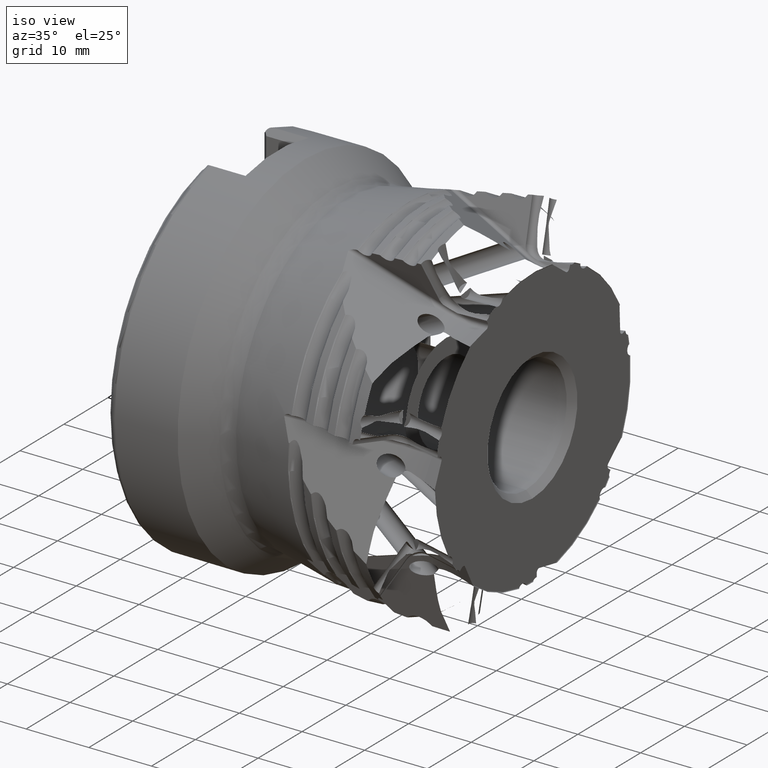
[diagram: clean part render]
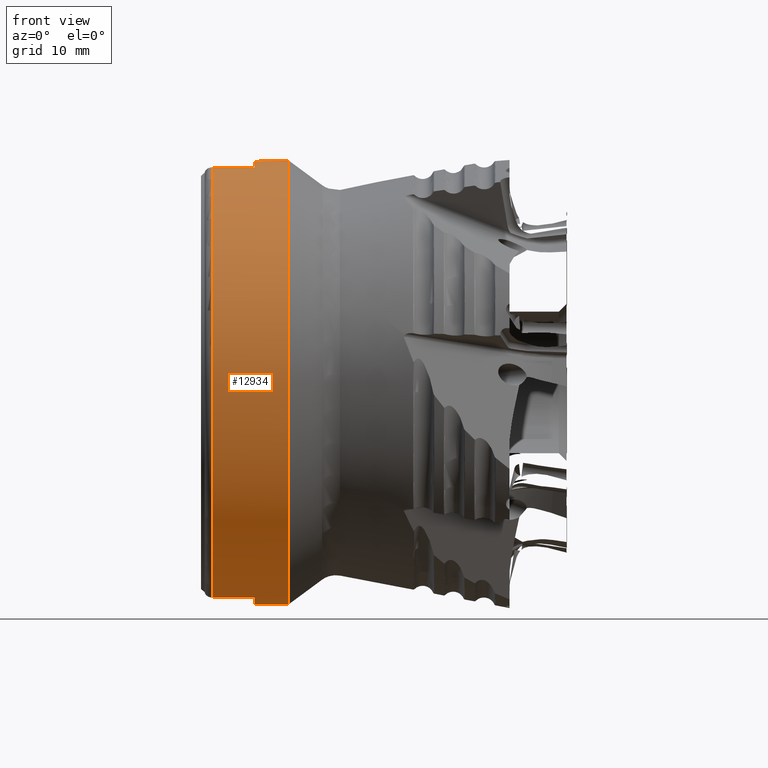
[diagram: tour spotlight — one face highlighted and labeled with its STEP entity id]
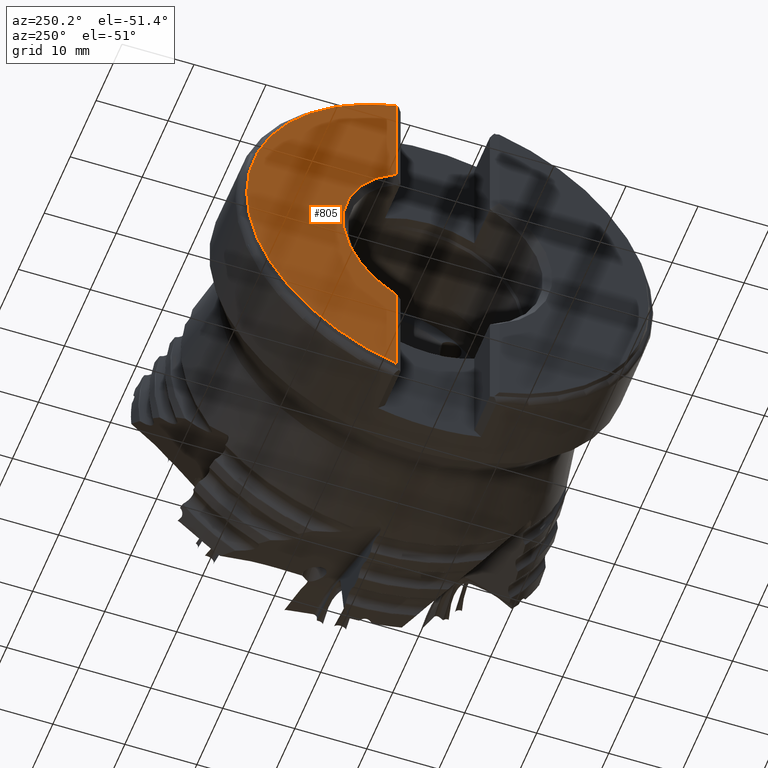
[diagram: tour spotlight — one face highlighted and labeled with its STEP entity id]
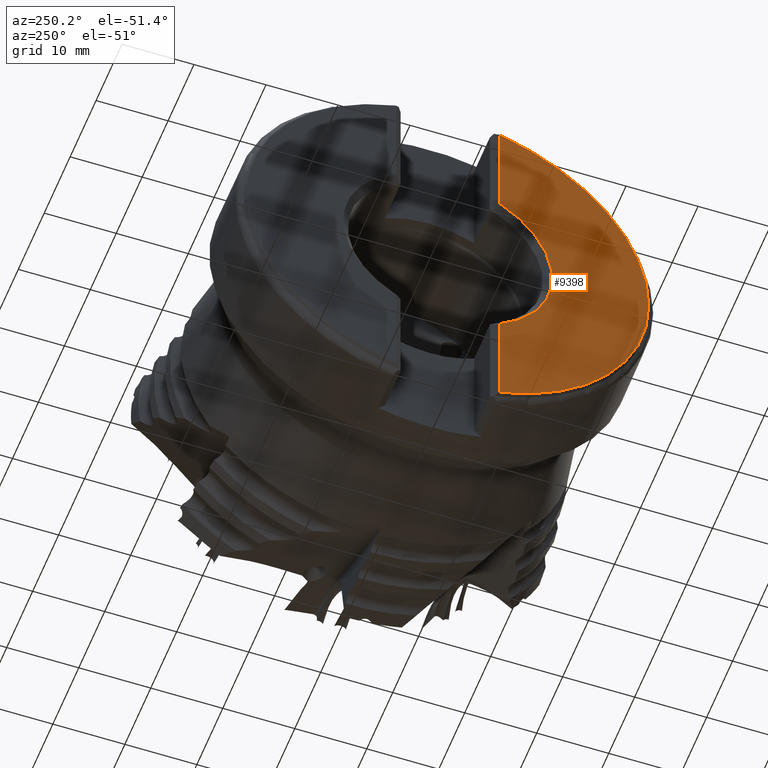
[diagram: tour spotlight — one face highlighted and labeled with its STEP entity id]
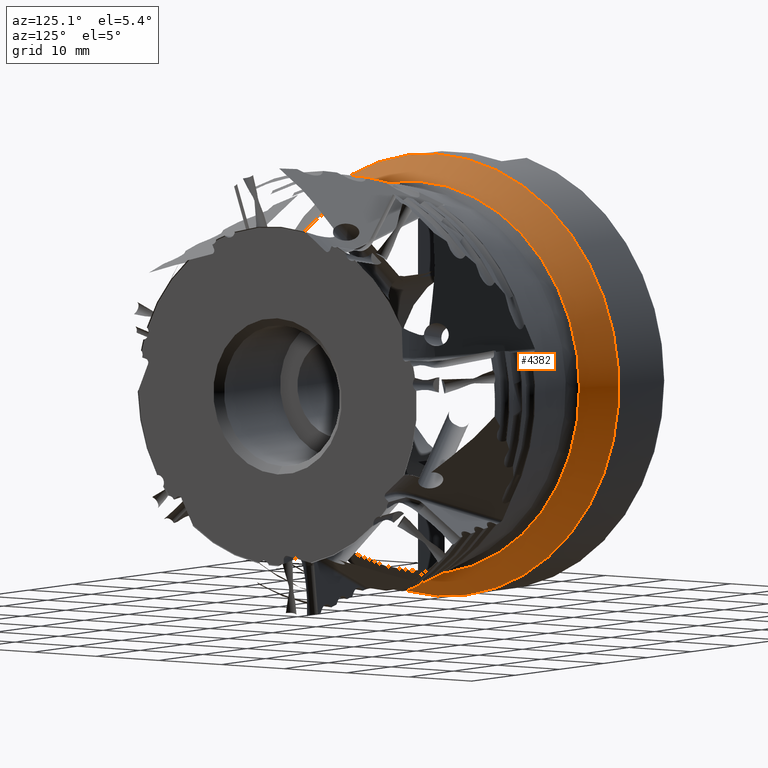
[diagram: tour spotlight — one face highlighted and labeled with its STEP entity id]
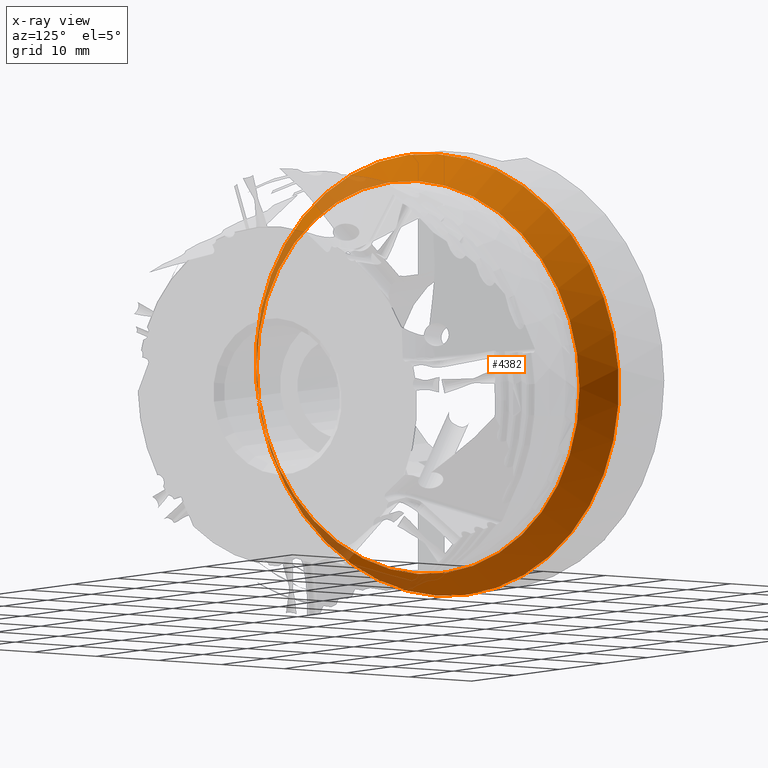
[diagram: x-ray of the same camera — body ghosted, this tour face saturated]
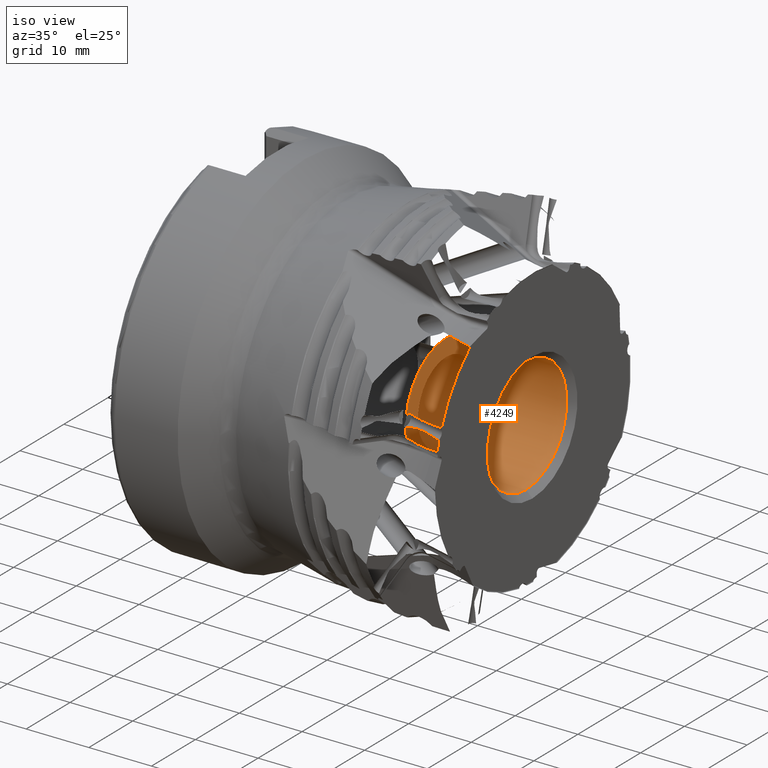
[diagram: tour spotlight — one face highlighted and labeled with its STEP entity id]
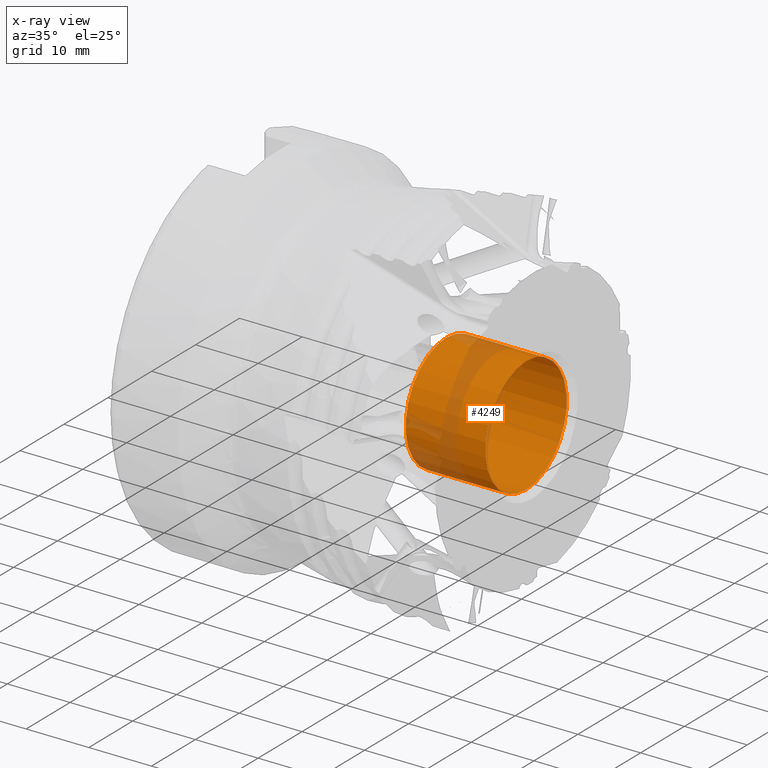
[diagram: x-ray of the same camera — body ghosted, this tour face saturated]
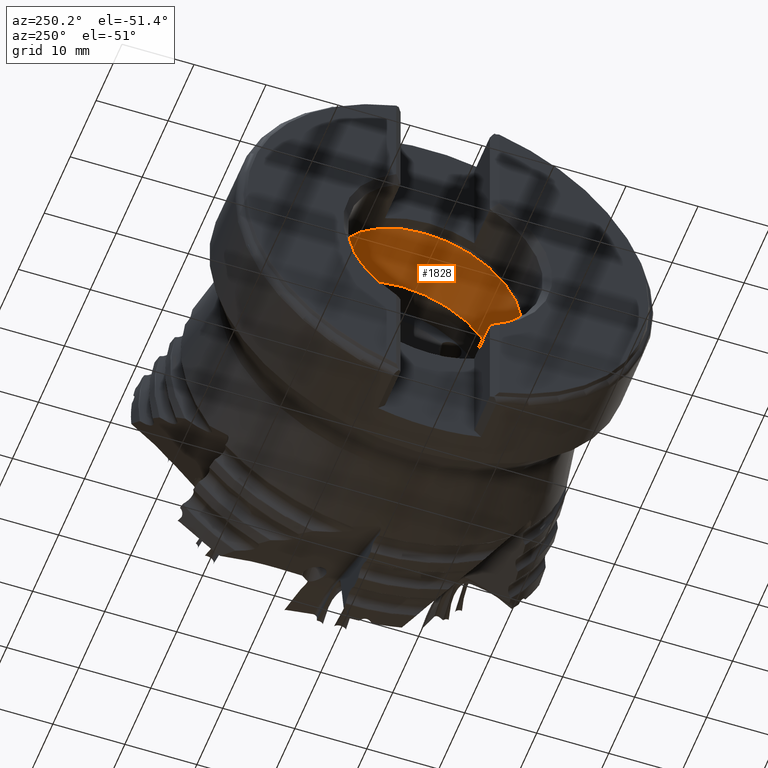
[diagram: tour spotlight — one face highlighted and labeled with its STEP entity id]
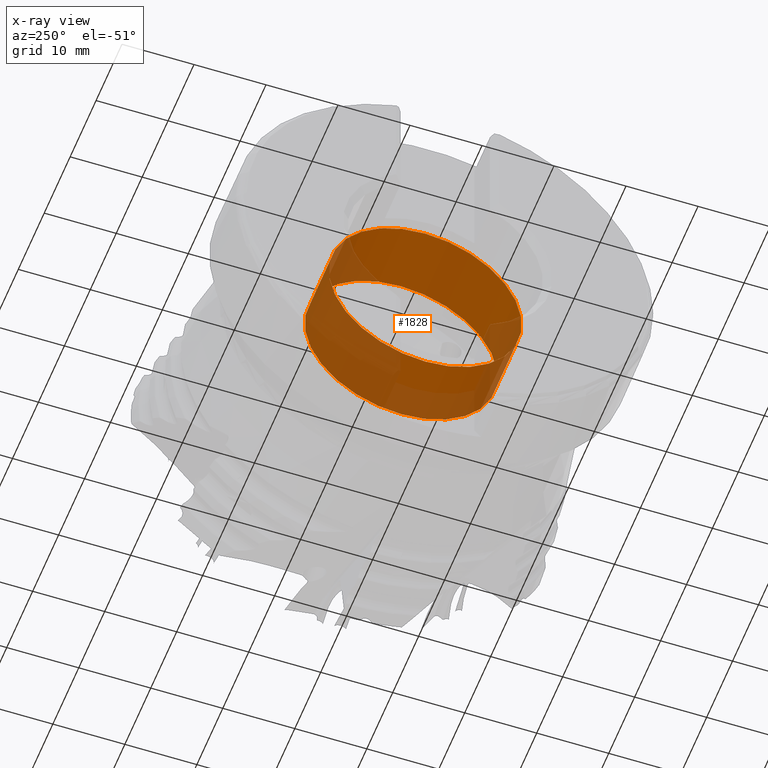
[diagram: x-ray of the same camera — body ghosted, this tour face saturated]
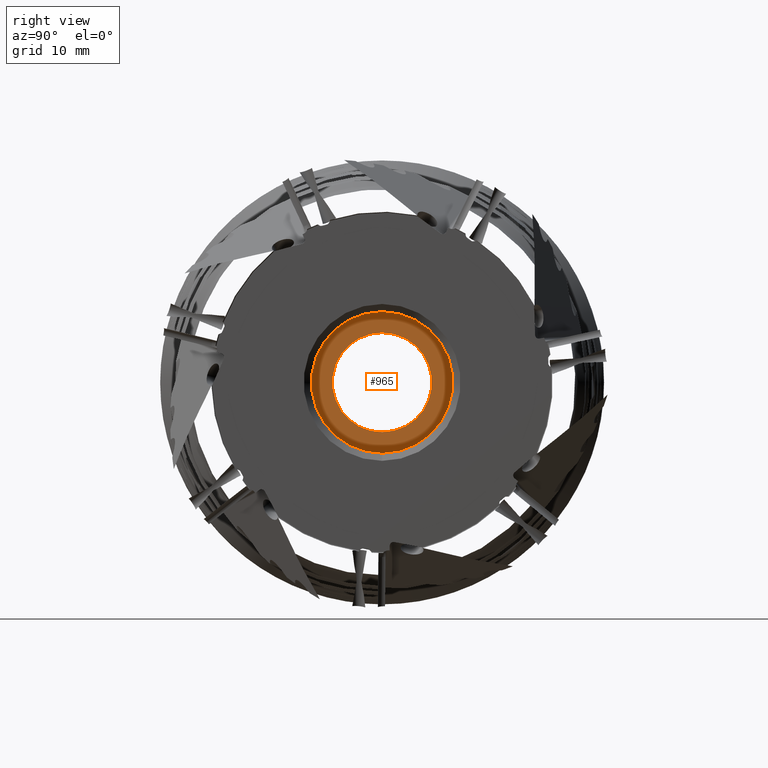
[diagram: tour spotlight — one face highlighted and labeled with its STEP entity id]
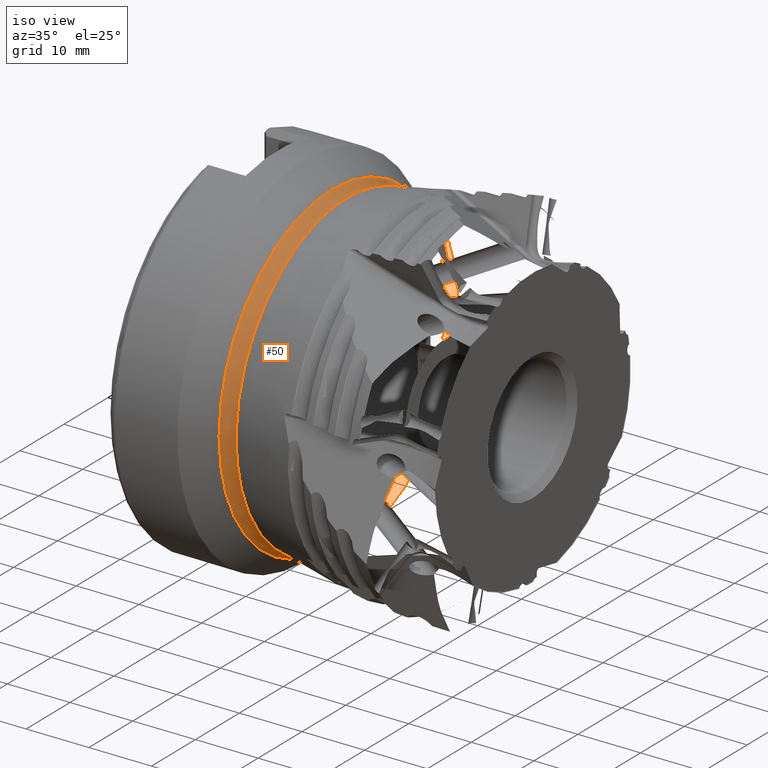
[diagram: tour spotlight — one face highlighted and labeled with its STEP entity id]
A machine part: a face-by-face anatomy tour. The part has 299 B-rep faces; the first image is the clean iso view, then the 8 largest visible faces are spotlighted one at a time (largest first), each with its STEP entity span.

Face 1 — front view, entity #12934. In plain terms, the highlighted cylindrical surface (bore or boss wall) has radius 29 mm, axis along (1, -0, -0).
Definition (entity closure, byte-faithful):
#37 = CARTESIAN_POINT ( 'NONE',  ( -47.54999999999999700, 0.0000000000000000000, 0.0000000000000000000 ) ) ;
#189 = DIRECTION ( 'NONE',  ( -1.000000000000000000, -0.0000000000000000000, -0.0000000000000000000 ) ) ;
#217 = CIRCLE ( 'NONE', #1855, 28.99999999999999600 ) ;
#283 = VECTOR ( 'NONE', #816, 1000.000000000000000 ) ;
#332 = DIRECTION ( 'NONE',  ( 1.000000000000000000, -0.0000000000000000000, -0.0000000000000000000 ) ) ;
#446 = EDGE_CURVE ( 'NONE', #3987, #10418, #8337, .T. ) ;
#537 = EDGE_LOOP ( 'NONE', ( #2968, #13372, #8790, #6016, #2985, #8470, #7058, #7799 ) ) ;
#816 = DIRECTION ( 'NONE',  ( -1.000000000000000000, 0.0000000000000000000, 0.0000000000000000000 ) ) ;
#1013 = CARTESIAN_POINT ( 'NONE',  ( -37.54999999999999700, 0.0000000000000000000, -28.99999999999999300 ) ) ;
#1113 = DIRECTION ( 'NONE',  ( 0.0000000000000000000, 0.0000000000000000000, -1.000000000000000000 ) ) ;
#1631 = EDGE_CURVE ( 'NONE', #10415, #5460, #5265, .T. ) ;
#1855 = AXIS2_PLACEMENT_3D ( 'NONE', #6556, #189, #7601 ) ;
#1898 = DIRECTION ( 'NONE',  ( -1.000000000000000000, 0.0000000000000000000, 0.0000000000000000000 ) ) ;
#2370 = DIRECTION ( 'NONE',  ( 1.000000000000000000, -0.0000000000000000000, -0.0000000000000000000 ) ) ;
#2613 = EDGE_CURVE ( 'NONE', #5551, #5551, #13028, .T. ) ;
#2836 = VERTEX_POINT ( 'NONE', #6629 ) ;
#2968 = ORIENTED_EDGE ( 'NONE', *, *, #8380, .T. ) ;
#2976 = DIRECTION ( 'NONE',  ( 1.000000000000000000, -0.0000000000000000000, -0.0000000000000000000 ) ) ;
#2985 = ORIENTED_EDGE ( 'NONE', *, *, #6899, .T. ) ;
#3062 = FACE_OUTER_BOUND ( 'NONE', #9675, .T. ) ;
#3724 = CARTESIAN_POINT ( 'NONE',  ( -41.99999999999999300, -7.162962588931226700, -28.10145844879891200 ) ) ;
#3987 = VERTEX_POINT ( 'NONE', #8842 ) ;
#4010 = VERTEX_POINT ( 'NONE', #9949 ) ;
#4032 = VERTEX_POINT ( 'NONE', #3724 ) ;
#4421 = CIRCLE ( 'NONE', #13558, 28.99999999999999600 ) ;
#4829 = EDGE_CURVE ( 'Kante61', #10415, #2836, #217, .T. ) ;
#4937 = CARTESIAN_POINT ( 'NONE',  ( -41.99999999999999300, -7.162962588931217000, 28.10145844879891200 ) ) ;
#5018 = ORIENTED_EDGE ( 'NONE', *, *, #2613, .F. ) ;
#5265 = LINE ( 'NONE', #13532, #283 ) ;
#5267 = CARTESIAN_POINT ( 'NONE',  ( -41.99999999999999300, 0.0000000000000000000, 0.0000000000000000000 ) ) ;
#5268 = CARTESIAN_POINT ( 'NONE',  ( -47.54999999999999700, 0.0000000000000000000, 0.0000000000000000000 ) ) ;
#5460 = VERTEX_POINT ( 'NONE', #5635 ) ;
#5551 = VERTEX_POINT ( 'NONE', #1013 ) ;
#5626 = CARTESIAN_POINT ( 'NONE',  ( 0.0000000000000000000, 0.0000000000000000000, 0.0000000000000000000 ) ) ;
#5635 = CARTESIAN_POINT ( 'NONE',  ( -47.54999999999999700, -7.162962588931217800, 28.10145844879891200 ) ) ;
#5966 = CARTESIAN_POINT ( 'NONE',  ( -37.54999999999999700, 0.0000000000000000000, 0.0000000000000000000 ) ) ;
#6016 = ORIENTED_EDGE ( 'NONE', *, *, #1631, .T. ) ;
#6329 = DIRECTION ( 'NONE',  ( 0.0000000000000000000, 0.0000000000000000000, -1.000000000000000000 ) ) ;
#6330 = DIRECTION ( 'NONE',  ( 0.0000000000000000000, 0.0000000000000000000, -1.000000000000000000 ) ) ;
#6556 = CARTESIAN_POINT ( 'NONE',  ( -41.99999999999999300, 0.0000000000000000000, 0.0000000000000000000 ) ) ;
#6629 = CARTESIAN_POINT ( 'NONE',  ( -41.99999999999999300, 7.162962588931238300, 28.10145844879890800 ) ) ;
#6680 = DIRECTION ( 'NONE',  ( 0.0000000000000000000, 0.0000000000000000000, -1.000000000000000000 ) ) ;
#6899 = EDGE_CURVE ( 'NONE', #5460, #4010, #9817, .T. ) ;
#7005 = DIRECTION ( 'NONE',  ( 0.0000000000000000000, 0.0000000000000000000, -1.000000000000000000 ) ) ;
#7058 = ORIENTED_EDGE ( 'NONE', *, *, #12662, .F. ) ;
#7199 = VECTOR ( 'NONE', #2976, 1000.000000000000000 ) ;
#7382 = CARTESIAN_POINT ( 'NONE',  ( 0.0000000000000000000, 7.162962588931239200, -28.10145844879891200 ) ) ;
#7455 = DIRECTION ( 'NONE',  ( 1.000000000000000000, -0.0000000000000000000, -0.0000000000000000000 ) ) ;
#7601 = DIRECTION ( 'NONE',  ( 0.0000000000000000000, 3.552713678800500900E-015, -1.000000000000000000 ) ) ;
#7653 = VECTOR ( 'NONE', #1898, 1000.000000000000000 ) ;
#7662 = CARTESIAN_POINT ( 'NONE',  ( -3.849776686507065000E-030, -7.162962588931214300, -28.10145844879891500 ) ) ;
#7799 = ORIENTED_EDGE ( 'NONE', *, *, #446, .T. ) ;
#7985 = EDGE_CURVE ( 'NONE', #4010, #4032, #9258, .T. ) ;
#8337 = LINE ( 'NONE', #7382, #7653 ) ;
#8380 = EDGE_CURVE ( 'NONE', #10418, #11529, #4421, .T. ) ;
#8470 = ORIENTED_EDGE ( 'NONE', *, *, #7985, .T. ) ;
#8790 = ORIENTED_EDGE ( 'NONE', *, *, #4829, .F. ) ;
#8842 = CARTESIAN_POINT ( 'NONE',  ( -41.99999999999999300, 7.162962588931238300, -28.10145844879890800 ) ) ;
#8982 = AXIS2_PLACEMENT_3D ( 'NONE', #5966, #13374, #7005 ) ;
#9258 = LINE ( 'NONE', #7662, #12046 ) ;
#9345 = CARTESIAN_POINT ( 'NONE',  ( 0.0000000000000000000, 7.162962588931239200, 28.10145844879891200 ) ) ;
#9432 = AXIS2_PLACEMENT_3D ( 'NONE', #5626, #332, #6680 ) ;
#9675 = EDGE_LOOP ( 'NONE', ( #5018 ) ) ;
#9717 = CIRCLE ( 'NONE', #10382, 28.99999999999999600 ) ;
#9817 = CIRCLE ( 'NONE', #12730, 28.99999999999999600 ) ;
#9949 = CARTESIAN_POINT ( 'NONE',  ( -47.54999999999999700, -7.162962588931226700, -28.10145844879890800 ) ) ;
#10040 = LINE ( 'NONE', #9345, #7199 ) ;
#10259 = CARTESIAN_POINT ( 'NONE',  ( -47.54999999999999700, 7.162962588931237400, -28.10145844879891200 ) ) ;
#10382 = AXIS2_PLACEMENT_3D ( 'NONE', #5267, #12655, #6329 ) ;
#10415 = VERTEX_POINT ( 'NONE', #4937 ) ;
#10418 = VERTEX_POINT ( 'NONE', #10259 ) ;
#10525 = CYLINDRICAL_SURFACE ( 'NONE', #9432, 28.99999999999999600 ) ;
#11529 = VERTEX_POINT ( 'NONE', #13206 ) ;
#12046 = VECTOR ( 'NONE', #2370, 1000.000000000000000 ) ;
#12502 = EDGE_CURVE ( 'NONE', #11529, #2836, #10040, .T. ) ;
#12655 = DIRECTION ( 'NONE',  ( -1.000000000000000000, -0.0000000000000000000, -0.0000000000000000000 ) ) ;
#12656 = DIRECTION ( 'NONE',  ( 1.000000000000000000, -0.0000000000000000000, -0.0000000000000000000 ) ) ;
#12662 = EDGE_CURVE ( 'Kante68', #3987, #4032, #9717, .T. ) ;
#12730 = AXIS2_PLACEMENT_3D ( 'NONE', #37, #7455, #1113 ) ;
#12934 = ADVANCED_FACE ( 'Fl�che8', ( #13675, #3062 ), #10525, .T. ) ;
#13028 = CIRCLE ( 'NONE', #8982, 28.99999999999999300 ) ;
#13206 = CARTESIAN_POINT ( 'NONE',  ( -47.54999999999999700, 7.162962588931237400, 28.10145844879890500 ) ) ;
#13372 = ORIENTED_EDGE ( 'NONE', *, *, #12502, .T. ) ;
#13374 = DIRECTION ( 'NONE',  ( 1.000000000000000000, -0.0000000000000000000, -0.0000000000000000000 ) ) ;
#13532 = CARTESIAN_POINT ( 'NONE',  ( -4.363080244708006400E-030, -7.162962588931206300, 28.10145844879891500 ) ) ;
#13558 = AXIS2_PLACEMENT_3D ( 'NONE', #5268, #12656, #6330 ) ;
#13675 = FACE_OUTER_BOUND ( 'NONE', #537, .T. ) ;

Face 2 — auxiliary view, entity #805. In plain terms, the highlighted planar face has unit normal (-1, 0, 0).
Definition (entity closure, byte-faithful):
#340 = AXIS2_PLACEMENT_3D ( 'NONE', #1317, #8765, #2381 ) ;
#618 = AXIS2_PLACEMENT_3D ( 'NONE', #2947, #10361, #4001 ) ;
#805 = ADVANCED_FACE ( 'NONE', ( #2839 ), #12962, .T. ) ;
#1317 = CARTESIAN_POINT ( 'NONE',  ( -48.99999999999999300, 0.0000000000000000000, 0.0000000000000000000 ) ) ;
#1570 = CIRCLE ( 'NONE', #1808, 14.52500000000000400 ) ;
#1808 = AXIS2_PLACEMENT_3D ( 'NONE', #6110, #13520, #7144 ) ;
#2225 = EDGE_CURVE ( 'NONE', #12869, #5691, #10378, .T. ) ;
#2381 = DIRECTION ( 'NONE',  ( 0.0000000000000000000, 0.0000000000000000000, 1.000000000000000000 ) ) ;
#2600 = ORIENTED_EDGE ( 'NONE', *, *, #9726, .T. ) ;
#2839 = FACE_OUTER_BOUND ( 'NONE', #10352, .T. ) ;
#2947 = CARTESIAN_POINT ( 'NONE',  ( -48.99999999999999300, 0.0000000000000000000, 0.0000000000000000000 ) ) ;
#2980 = EDGE_CURVE ( 'Kante54', #12869, #5721, #11031, .T. ) ;
#3440 = CARTESIAN_POINT ( 'NONE',  ( -48.99999999999999300, 7.150000000000013700, -26.99132532673132100 ) ) ;
#4001 = DIRECTION ( 'NONE',  ( 0.0000000000000000000, -8.881784197001252300E-016, 1.000000000000000000 ) ) ;
#4073 = VECTOR ( 'NONE', #5174, 1000.000000000000000 ) ;
#5174 = DIRECTION ( 'NONE',  ( 0.0000000000000000000, -0.0000000000000000000, 1.000000000000000000 ) ) ;
#5253 = VECTOR ( 'NONE', #11958, 1000.000000000000000 ) ;
#5632 = CARTESIAN_POINT ( 'NONE',  ( -48.99999999999999300, 7.150000000000014600, -35.00000000000000000 ) ) ;
#5691 = VERTEX_POINT ( 'NONE', #8273 ) ;
#5721 = VERTEX_POINT ( 'NONE', #11447 ) ;
#5826 = CARTESIAN_POINT ( 'NONE',  ( -48.99999999999999300, 7.150000000000013700, 12.64330356354698500 ) ) ;
#6110 = CARTESIAN_POINT ( 'NONE',  ( -48.99999999999999300, 0.0000000000000000000, 0.0000000000000000000 ) ) ;
#6200 = ORIENTED_EDGE ( 'NONE', *, *, #2980, .F. ) ;
#6888 = ORIENTED_EDGE ( 'NONE', *, *, #2225, .T. ) ;
#7144 = DIRECTION ( 'NONE',  ( 0.0000000000000000000, 0.0000000000000000000, 1.000000000000000000 ) ) ;
#8060 = LINE ( 'NONE', #5632, #5253 ) ;
#8134 = VERTEX_POINT ( 'NONE', #5826 ) ;
#8273 = CARTESIAN_POINT ( 'NONE',  ( -48.99999999999999300, 7.150000000000013700, -12.64330356354698500 ) ) ;
#8765 = DIRECTION ( 'NONE',  ( -1.000000000000000000, 0.0000000000000000000, 0.0000000000000000000 ) ) ;
#9412 = EDGE_CURVE ( 'NONE', #5691, #8134, #1570, .T. ) ;
#9726 = EDGE_CURVE ( 'NONE', #8134, #5721, #8060, .T. ) ;
#10352 = EDGE_LOOP ( 'NONE', ( #6888, #12966, #2600, #6200 ) ) ;
#10361 = DIRECTION ( 'NONE',  ( 1.000000000000000000, -0.0000000000000000000, -0.0000000000000000000 ) ) ;
#10378 = LINE ( 'NONE', #12576, #4073 ) ;
#11031 = CIRCLE ( 'NONE', #618, 27.92228756555321900 ) ;
#11447 = CARTESIAN_POINT ( 'NONE',  ( -48.99999999999999300, 7.150000000000014600, 26.99132532673015200 ) ) ;
#11958 = DIRECTION ( 'NONE',  ( 0.0000000000000000000, -0.0000000000000000000, 1.000000000000000000 ) ) ;
#12576 = CARTESIAN_POINT ( 'NONE',  ( -48.99999999999999300, 7.150000000000014600, -35.00000000000000000 ) ) ;
#12869 = VERTEX_POINT ( 'NONE', #3440 ) ;
#12962 = PLANE ( 'NONE',  #340 ) ;
#12966 = ORIENTED_EDGE ( 'NONE', *, *, #9412, .T. ) ;
#13520 = DIRECTION ( 'NONE',  ( 1.000000000000000000, -0.0000000000000000000, -0.0000000000000000000 ) ) ;

Face 3 — auxiliary view, entity #9398. In plain terms, the highlighted planar face has unit normal (-1, 0, 0).
Definition (entity closure, byte-faithful):
#307 = DIRECTION ( 'NONE',  ( 0.0000000000000000000, 0.0000000000000000000, 1.000000000000000000 ) ) ;
#1031 = EDGE_CURVE ( 'NONE', #12738, #2577, #9983, .T. ) ;
#1123 = AXIS2_PLACEMENT_3D ( 'NONE', #8099, #11280, #4940 ) ;
#1313 = CARTESIAN_POINT ( 'NONE',  ( -48.99999999999999300, -7.150000000000027000, -35.00000000000000000 ) ) ;
#1949 = CARTESIAN_POINT ( 'NONE',  ( -48.99999999999999300, -7.150000000000026100, -12.64330356354697700 ) ) ;
#2400 = LINE ( 'NONE', #1313, #10543 ) ;
#2577 = VERTEX_POINT ( 'NONE', #10121 ) ;
#2679 = CARTESIAN_POINT ( 'NONE',  ( -48.99999999999999300, -7.150000000000027000, -35.00000000000000000 ) ) ;
#3656 = EDGE_LOOP ( 'NONE', ( #7163, #12496, #8866, #5717 ) ) ;
#3863 = PLANE ( 'NONE',  #1123 ) ;
#4072 = FACE_OUTER_BOUND ( 'NONE', #3656, .T. ) ;
#4940 = DIRECTION ( 'NONE',  ( 0.0000000000000000000, 0.0000000000000000000, 1.000000000000000000 ) ) ;
#5356 = CARTESIAN_POINT ( 'NONE',  ( -48.99999999999999300, -7.150000000000025200, 26.99132532673132100 ) ) ;
#5596 = VECTOR ( 'NONE', #5909, 1000.000000000000000 ) ;
#5717 = ORIENTED_EDGE ( 'NONE', *, *, #12037, .T. ) ;
#5817 = CARTESIAN_POINT ( 'NONE',  ( -48.99999999999999300, 0.0000000000000000000, 0.0000000000000000000 ) ) ;
#5909 = DIRECTION ( 'NONE',  ( 0.0000000000000000000, 0.0000000000000000000, -1.000000000000000000 ) ) ;
#6657 = DIRECTION ( 'NONE',  ( 1.000000000000000000, -0.0000000000000000000, -0.0000000000000000000 ) ) ;
#6866 = DIRECTION ( 'NONE',  ( 0.0000000000000000000, 0.0000000000000000000, 1.000000000000000000 ) ) ;
#7163 = ORIENTED_EDGE ( 'NONE', *, *, #8684, .T. ) ;
#7356 = AXIS2_PLACEMENT_3D ( 'NONE', #13004, #6657, #307 ) ;
#8099 = CARTESIAN_POINT ( 'NONE',  ( -48.99999999999999300, 0.0000000000000000000, 0.0000000000000000000 ) ) ;
#8169 = AXIS2_PLACEMENT_3D ( 'NONE', #5817, #13222, #6866 ) ;
#8414 = LINE ( 'NONE', #2679, #5596 ) ;
#8684 = EDGE_CURVE ( 'NONE', #10523, #2577, #8414, .T. ) ;
#8866 = ORIENTED_EDGE ( 'NONE', *, *, #12030, .T. ) ;
#9398 = ADVANCED_FACE ( 'NONE', ( #4072 ), #3863, .T. ) ;
#9983 = CIRCLE ( 'NONE', #8169, 27.92228756555321900 ) ;
#10121 = CARTESIAN_POINT ( 'NONE',  ( -48.99999999999999300, -7.150000000000026100, -26.99132532673132100 ) ) ;
#10523 = VERTEX_POINT ( 'NONE', #1949 ) ;
#10543 = VECTOR ( 'NONE', #11844, 1000.000000000000000 ) ;
#11280 = DIRECTION ( 'NONE',  ( -1.000000000000000000, 0.0000000000000000000, 0.0000000000000000000 ) ) ;
#11768 = VERTEX_POINT ( 'NONE', #13573 ) ;
#11844 = DIRECTION ( 'NONE',  ( 0.0000000000000000000, 0.0000000000000000000, -1.000000000000000000 ) ) ;
#12030 = EDGE_CURVE ( 'NONE', #12738, #11768, #2400, .T. ) ;
#12037 = EDGE_CURVE ( 'NONE', #11768, #10523, #13365, .T. ) ;
#12496 = ORIENTED_EDGE ( 'NONE', *, *, #1031, .F. ) ;
#12738 = VERTEX_POINT ( 'NONE', #5356 ) ;
#13004 = CARTESIAN_POINT ( 'NONE',  ( -48.99999999999999300, 0.0000000000000000000, 0.0000000000000000000 ) ) ;
#13222 = DIRECTION ( 'NONE',  ( 1.000000000000000000, -0.0000000000000000000, -0.0000000000000000000 ) ) ;
#13365 = CIRCLE ( 'NONE', #7356, 14.52500000000000400 ) ;
#13573 = CARTESIAN_POINT ( 'NONE',  ( -48.99999999999999300, -7.150000000000027000, 12.64330356354697700 ) ) ;

Face 4 — auxiliary view, entity #4382. An x-ray twin of the same camera follows (body ghosted, this face saturated) — the face is partly hidden behind the body. In plain terms, the highlighted conical surface has half-angle 36.417 deg.
Definition (entity closure, byte-faithful):
#387 = CARTESIAN_POINT ( 'NONE',  ( -33.18403469254878500, 0.0000000000000000000, 0.0000000000000000000 ) ) ;
#1013 = CARTESIAN_POINT ( 'NONE',  ( -37.54999999999999700, 0.0000000000000000000, -28.99999999999999300 ) ) ;
#1122 = ORIENTED_EDGE ( 'NONE', *, *, #2613, .T. ) ;
#2071 = CARTESIAN_POINT ( 'NONE',  ( -33.18403469254878500, 0.0000000000000000000, -25.77912350802459700 ) ) ;
#2613 = EDGE_CURVE ( 'NONE', #5551, #5551, #13028, .T. ) ;
#2706 = VERTEX_POINT ( 'NONE', #2071 ) ;
#2920 = EDGE_CURVE ( 'NONE', #2706, #2706, #11691, .T. ) ;
#4382 = ADVANCED_FACE ( 'NONE', ( #13501, #5388 ), #10333, .T. ) ;
#4945 = DIRECTION ( 'NONE',  ( 1.000000000000000000, -0.0000000000000000000, -0.0000000000000000000 ) ) ;
#5198 = ORIENTED_EDGE ( 'NONE', *, *, #2920, .F. ) ;
#5388 = FACE_BOUND ( 'NONE', #11808, .T. ) ;
#5551 = VERTEX_POINT ( 'NONE', #1013 ) ;
#5679 = DIRECTION ( 'NONE',  ( -1.000000000000000000, 0.0000000000000000000, 0.0000000000000000000 ) ) ;
#5966 = CARTESIAN_POINT ( 'NONE',  ( -37.54999999999999700, 0.0000000000000000000, 0.0000000000000000000 ) ) ;
#7005 = DIRECTION ( 'NONE',  ( 0.0000000000000000000, 0.0000000000000000000, -1.000000000000000000 ) ) ;
#7793 = DIRECTION ( 'NONE',  ( 0.0000000000000000000, 0.0000000000000000000, 1.000000000000000000 ) ) ;
#8817 = AXIS2_PLACEMENT_3D ( 'NONE', #387, #5679, #7793 ) ;
#8982 = AXIS2_PLACEMENT_3D ( 'NONE', #5966, #13374, #7005 ) ;
#10333 = CONICAL_SURFACE ( 'NONE', #8817, 25.77912350802459700, 0.6355979305626715500 ) ;
#10806 = EDGE_LOOP ( 'NONE', ( #1122 ) ) ;
#11285 = CARTESIAN_POINT ( 'NONE',  ( -33.18403469254878500, 0.0000000000000000000, 0.0000000000000000000 ) ) ;
#11546 = AXIS2_PLACEMENT_3D ( 'NONE', #11285, #4945, #12352 ) ;
#11691 = CIRCLE ( 'NONE', #11546, 25.77912350802459700 ) ;
#11808 = EDGE_LOOP ( 'NONE', ( #5198 ) ) ;
#12352 = DIRECTION ( 'NONE',  ( 0.0000000000000000000, 0.0000000000000000000, -1.000000000000000000 ) ) ;
#13028 = CIRCLE ( 'NONE', #8982, 28.99999999999999300 ) ;
#13374 = DIRECTION ( 'NONE',  ( 1.000000000000000000, -0.0000000000000000000, -0.0000000000000000000 ) ) ;
#13501 = FACE_OUTER_BOUND ( 'NONE', #10806, .T. ) ;

Face 5 — iso view, entity #4249. An x-ray twin of the same camera follows (body ghosted, this face saturated) — the face is partly hidden behind the body. In plain terms, the highlighted cylindrical surface (bore or boss wall) has radius 9.25 mm, axis along (1, -0, -0).
Definition (entity closure, byte-faithful):
#160 = DIRECTION ( 'NONE',  ( 1.000000000000000000, -0.0000000000000000000, -0.0000000000000000000 ) ) ;
#726 = CYLINDRICAL_SURFACE ( 'NONE', #5269, 9.249999999999998200 ) ;
#729 = DIRECTION ( 'NONE',  ( 0.0000000000000000000, 0.0000000000000000000, -1.000000000000000000 ) ) ;
#1055 = FACE_OUTER_BOUND ( 'NONE', #4704, .T. ) ;
#1737 = EDGE_LOOP ( 'NONE', ( #8323 ) ) ;
#1901 = CIRCLE ( 'NONE', #2108, 9.249999999999998200 ) ;
#2095 = DIRECTION ( 'NONE',  ( 1.000000000000000000, -0.0000000000000000000, -0.0000000000000000000 ) ) ;
#2108 = AXIS2_PLACEMENT_3D ( 'NONE', #13431, #7070, #729 ) ;
#2164 = EDGE_CURVE ( 'NONE', #11495, #11495, #1901, .T. ) ;
#2332 = EDGE_CURVE ( 'NONE', #8363, #8363, #3737, .T. ) ;
#3233 = DIRECTION ( 'NONE',  ( 0.0000000000000000000, 0.0000000000000000000, -1.000000000000000000 ) ) ;
#3737 = CIRCLE ( 'NONE', #7795, 9.250000000000000000 ) ;
#4249 = ADVANCED_FACE ( 'NONE', ( #9203, #1055 ), #726, .F. ) ;
#4704 = EDGE_LOOP ( 'NONE', ( #4973 ) ) ;
#4973 = ORIENTED_EDGE ( 'NONE', *, *, #2332, .T. ) ;
#5269 = AXIS2_PLACEMENT_3D ( 'NONE', #10636, #2095, #3233 ) ;
#6276 = CARTESIAN_POINT ( 'NONE',  ( -15.00000000000000000, 0.0000000000000000000, -9.249999999999998200 ) ) ;
#6519 = CARTESIAN_POINT ( 'NONE',  ( -2.249999999999998700, 0.0000000000000000000, 0.0000000000000000000 ) ) ;
#7070 = DIRECTION ( 'NONE',  ( 1.000000000000000000, -0.0000000000000000000, -0.0000000000000000000 ) ) ;
#7571 = DIRECTION ( 'NONE',  ( 0.0000000000000000000, 0.0000000000000000000, -1.000000000000000000 ) ) ;
#7795 = AXIS2_PLACEMENT_3D ( 'NONE', #6519, #160, #7571 ) ;
#8323 = ORIENTED_EDGE ( 'NONE', *, *, #2164, .F. ) ;
#8363 = VERTEX_POINT ( 'NONE', #12674 ) ;
#9203 = FACE_OUTER_BOUND ( 'NONE', #1737, .T. ) ;
#10636 = CARTESIAN_POINT ( 'NONE',  ( 0.0000000000000000000, 0.0000000000000000000, 0.0000000000000000000 ) ) ;
#11495 = VERTEX_POINT ( 'NONE', #6276 ) ;
#12674 = CARTESIAN_POINT ( 'NONE',  ( -2.249999999999998700, 0.0000000000000000000, -9.250000000000000000 ) ) ;
#13431 = CARTESIAN_POINT ( 'NONE',  ( -15.00000000000000000, 0.0000000000000000000, 0.0000000000000000000 ) ) ;

Face 6 — auxiliary view, entity #1828. An x-ray twin of the same camera follows (body ghosted, this face saturated) — the face is partly hidden behind the body. In plain terms, the highlighted cylindrical surface (bore or boss wall) has radius 13.4 mm, axis along (1, -0, -0).
Definition (entity closure, byte-faithful):
#256 = ORIENTED_EDGE ( 'NONE', *, *, #6253, .T. ) ;
#388 = CIRCLE ( 'NONE', #6674, 13.39999999999999500 ) ;
#1743 = DIRECTION ( 'NONE',  ( 0.0000000000000000000, 0.0000000000000000000, -1.000000000000000000 ) ) ;
#1828 = ADVANCED_FACE ( 'NONE', ( #3911, #4251 ), #12032, .F. ) ;
#2371 = AXIS2_PLACEMENT_3D ( 'NONE', #8119, #8076, #1743 ) ;
#2955 = AXIS2_PLACEMENT_3D ( 'NONE', #10737, #4394, #11799 ) ;
#3361 = CARTESIAN_POINT ( 'NONE',  ( -40.34999999999999400, 0.0000000000000000000, 0.0000000000000000000 ) ) ;
#3911 = FACE_OUTER_BOUND ( 'NONE', #6388, .T. ) ;
#4251 = FACE_OUTER_BOUND ( 'NONE', #7041, .T. ) ;
#4303 = EDGE_CURVE ( 'NONE', #13659, #13659, #388, .T. ) ;
#4394 = DIRECTION ( 'NONE',  ( 1.000000000000000000, -0.0000000000000000000, -0.0000000000000000000 ) ) ;
#4428 = DIRECTION ( 'NONE',  ( 0.0000000000000000000, 0.0000000000000000000, -1.000000000000000000 ) ) ;
#5047 = ORIENTED_EDGE ( 'NONE', *, *, #4303, .F. ) ;
#6253 = EDGE_CURVE ( 'NONE', #8021, #8021, #10647, .T. ) ;
#6388 = EDGE_LOOP ( 'NONE', ( #5047 ) ) ;
#6674 = AXIS2_PLACEMENT_3D ( 'NONE', #3361, #10766, #4428 ) ;
#7041 = EDGE_LOOP ( 'NONE', ( #256 ) ) ;
#8021 = VERTEX_POINT ( 'NONE', #10574 ) ;
#8076 = DIRECTION ( 'NONE',  ( 1.000000000000000000, -0.0000000000000000000, -0.0000000000000000000 ) ) ;
#8119 = CARTESIAN_POINT ( 'NONE',  ( 0.0000000000000000000, 0.0000000000000000000, 0.0000000000000000000 ) ) ;
#9522 = CARTESIAN_POINT ( 'NONE',  ( -40.34999999999999400, 0.0000000000000000000, -13.39999999999999500 ) ) ;
#10574 = CARTESIAN_POINT ( 'NONE',  ( -30.99999999999999600, 0.0000000000000000000, -13.39999999999999700 ) ) ;
#10647 = CIRCLE ( 'NONE', #2955, 13.39999999999999700 ) ;
#10737 = CARTESIAN_POINT ( 'NONE',  ( -30.99999999999999600, 0.0000000000000000000, 0.0000000000000000000 ) ) ;
#10766 = DIRECTION ( 'NONE',  ( 1.000000000000000000, -0.0000000000000000000, -0.0000000000000000000 ) ) ;
#11799 = DIRECTION ( 'NONE',  ( 0.0000000000000000000, 0.0000000000000000000, -1.000000000000000000 ) ) ;
#12032 = CYLINDRICAL_SURFACE ( 'NONE', #2371, 13.39999999999999500 ) ;
#13659 = VERTEX_POINT ( 'NONE', #9522 ) ;

Face 7 — right view, entity #965. In plain terms, the highlighted planar face has unit normal (-1, 0, 0).
Definition (entity closure, byte-faithful):
#729 = DIRECTION ( 'NONE',  ( 0.0000000000000000000, 0.0000000000000000000, -1.000000000000000000 ) ) ;
#965 = ADVANCED_FACE ( 'NONE', ( #8500, #5005 ), #12247, .F. ) ;
#1668 = DIRECTION ( 'NONE',  ( 0.0000000000000000000, 0.0000000000000000000, 1.000000000000000000 ) ) ;
#1901 = CIRCLE ( 'NONE', #2108, 9.249999999999998200 ) ;
#2108 = AXIS2_PLACEMENT_3D ( 'NONE', #13431, #7070, #729 ) ;
#2164 = EDGE_CURVE ( 'NONE', #11495, #11495, #1901, .T. ) ;
#2705 = CARTESIAN_POINT ( 'NONE',  ( -15.00000000000000000, 9.249999999999998200, 0.0000000000000000000 ) ) ;
#4875 = VERTEX_POINT ( 'NONE', #13770 ) ;
#5005 = FACE_OUTER_BOUND ( 'NONE', #12293, .T. ) ;
#5660 = CARTESIAN_POINT ( 'NONE',  ( -15.00000000000000000, 0.0000000000000000000, 0.0000000000000000000 ) ) ;
#6220 = AXIS2_PLACEMENT_3D ( 'NONE', #5660, #13062, #6719 ) ;
#6276 = CARTESIAN_POINT ( 'NONE',  ( -15.00000000000000000, 0.0000000000000000000, -9.249999999999998200 ) ) ;
#6719 = DIRECTION ( 'NONE',  ( 0.0000000000000000000, 0.0000000000000000000, -1.000000000000000000 ) ) ;
#7070 = DIRECTION ( 'NONE',  ( 1.000000000000000000, -0.0000000000000000000, -0.0000000000000000000 ) ) ;
#7436 = AXIS2_PLACEMENT_3D ( 'NONE', #2705, #8052, #1668 ) ;
#7888 = CIRCLE ( 'NONE', #6220, 6.499999999999999100 ) ;
#8052 = DIRECTION ( 'NONE',  ( -1.000000000000000000, 0.0000000000000000000, 0.0000000000000000000 ) ) ;
#8500 = FACE_BOUND ( 'NONE', #11461, .T. ) ;
#9065 = ORIENTED_EDGE ( 'NONE', *, *, #2164, .T. ) ;
#11062 = ORIENTED_EDGE ( 'NONE', *, *, #11417, .F. ) ;
#11417 = EDGE_CURVE ( 'NONE', #4875, #4875, #7888, .T. ) ;
#11461 = EDGE_LOOP ( 'NONE', ( #11062 ) ) ;
#11495 = VERTEX_POINT ( 'NONE', #6276 ) ;
#12247 = PLANE ( 'NONE',  #7436 ) ;
#12293 = EDGE_LOOP ( 'NONE', ( #9065 ) ) ;
#13062 = DIRECTION ( 'NONE',  ( 1.000000000000000000, -0.0000000000000000000, -0.0000000000000000000 ) ) ;
#13431 = CARTESIAN_POINT ( 'NONE',  ( -15.00000000000000000, 0.0000000000000000000, 0.0000000000000000000 ) ) ;
#13770 = CARTESIAN_POINT ( 'NONE',  ( -15.00000000000000000, 0.0000000000000000000, -6.499999999999999100 ) ) ;

Face 8 — iso view, entity #50. In plain terms, the highlighted toroidal blend (fillet) surface has major radius 28.1933 mm and minor (blend) radius 3 mm.
Definition (entity closure, byte-faithful):
#50 = ADVANCED_FACE ( 'NONE', ( #1840, #12799 ), #7495, .F. ) ;
#470 = DIRECTION ( 'NONE',  ( 0.0000000000000000000, 0.0000000000000000000, -1.000000000000000000 ) ) ;
#1840 = FACE_OUTER_BOUND ( 'NONE', #2455, .T. ) ;
#2071 = CARTESIAN_POINT ( 'NONE',  ( -33.18403469254878500, 0.0000000000000000000, -25.77912350802459700 ) ) ;
#2143 = DIRECTION ( 'NONE',  ( 1.000000000000000000, -0.0000000000000000000, -0.0000000000000000000 ) ) ;
#2455 = EDGE_LOOP ( 'NONE', ( #9701 ) ) ;
#2706 = VERTEX_POINT ( 'NONE', #2071 ) ;
#2920 = EDGE_CURVE ( 'NONE', #2706, #2706, #11691, .T. ) ;
#3660 = CARTESIAN_POINT ( 'NONE',  ( -31.40305833676009000, 0.0000000000000000000, 0.0000000000000000000 ) ) ;
#4945 = DIRECTION ( 'NONE',  ( 1.000000000000000000, -0.0000000000000000000, -0.0000000000000000000 ) ) ;
#5068 = CIRCLE ( 'NONE', #12220, 25.24679352548476200 ) ;
#5475 = EDGE_LOOP ( 'NONE', ( #11833 ) ) ;
#6367 = CARTESIAN_POINT ( 'NONE',  ( -30.83892000808290100, 0.0000000000000000000, -25.24679352548476200 ) ) ;
#7495 = TOROIDAL_SURFACE ( 'NONE', #9669, 28.19327412886862300, 2.999999999999997300 ) ;
#7684 = VERTEX_POINT ( 'NONE', #6367 ) ;
#8529 = CARTESIAN_POINT ( 'NONE',  ( -30.83892000808290100, 0.0000000000000000000, 0.0000000000000000000 ) ) ;
#9599 = DIRECTION ( 'NONE',  ( 0.0000000000000000000, 0.0000000000000000000, -1.000000000000000000 ) ) ;
#9669 = AXIS2_PLACEMENT_3D ( 'NONE', #3660, #11050, #470 ) ;
#9701 = ORIENTED_EDGE ( 'NONE', *, *, #2920, .T. ) ;
#10100 = EDGE_CURVE ( 'NONE', #7684, #7684, #5068, .T. ) ;
#11050 = DIRECTION ( 'NONE',  ( 1.000000000000000000, -0.0000000000000000000, -0.0000000000000000000 ) ) ;
#11285 = CARTESIAN_POINT ( 'NONE',  ( -33.18403469254878500, 0.0000000000000000000, 0.0000000000000000000 ) ) ;
#11546 = AXIS2_PLACEMENT_3D ( 'NONE', #11285, #4945, #12352 ) ;
#11691 = CIRCLE ( 'NONE', #11546, 25.77912350802459700 ) ;
#11833 = ORIENTED_EDGE ( 'NONE', *, *, #10100, .F. ) ;
#12220 = AXIS2_PLACEMENT_3D ( 'NONE', #8529, #2143, #9599 ) ;
#12352 = DIRECTION ( 'NONE',  ( 0.0000000000000000000, 0.0000000000000000000, -1.000000000000000000 ) ) ;
#12799 = FACE_OUTER_BOUND ( 'NONE', #5475, .T. ) ;